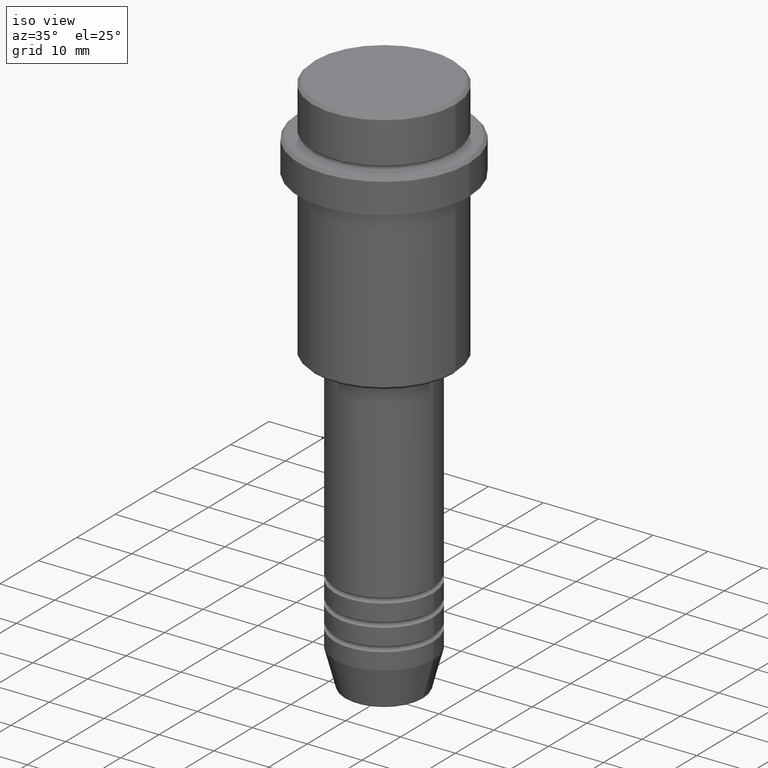
[diagram: clean part render]
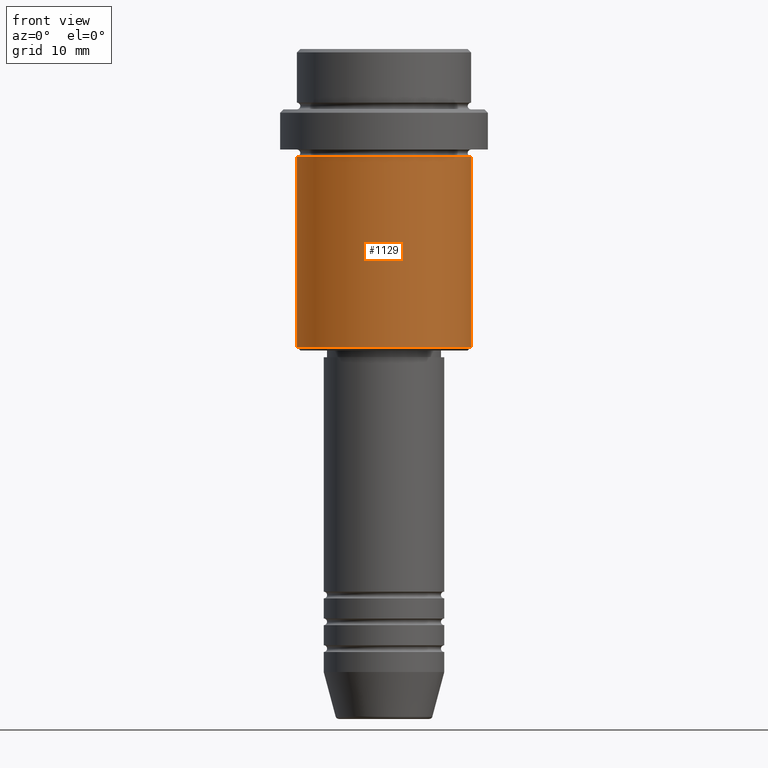
[diagram: tour spotlight — one face highlighted and labeled with its STEP entity id]
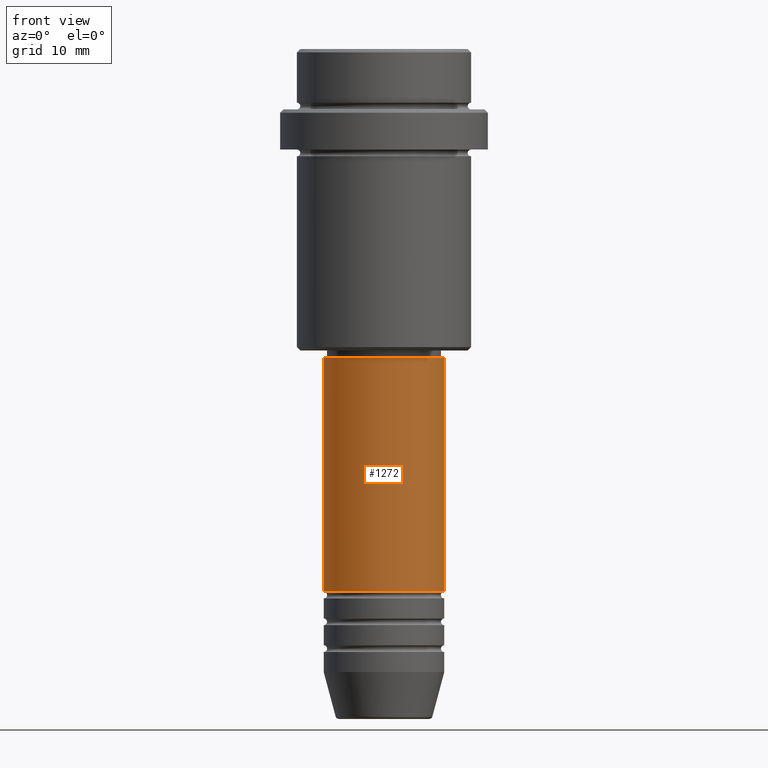
[diagram: tour spotlight — one face highlighted and labeled with its STEP entity id]
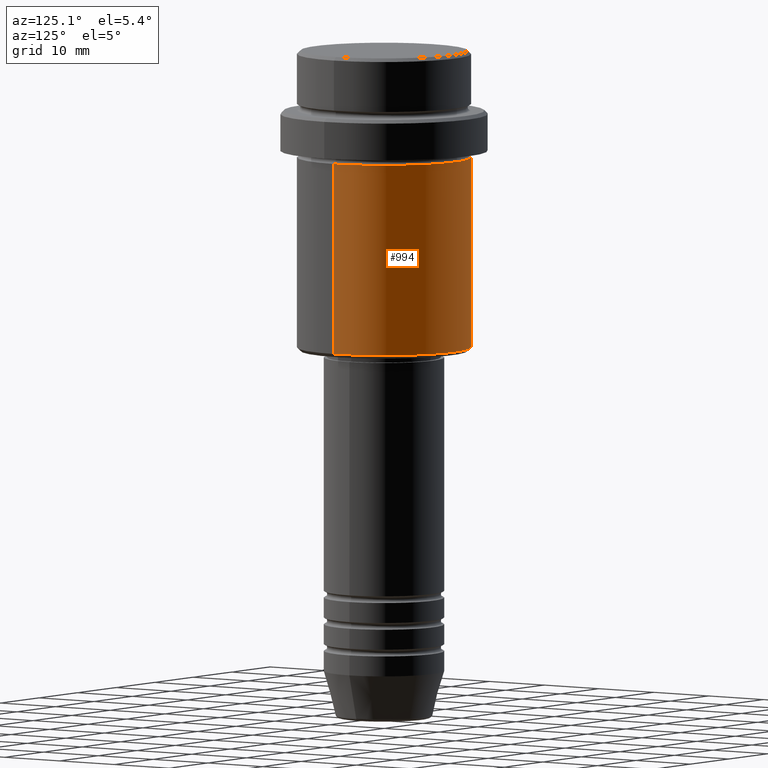
[diagram: tour spotlight — one face highlighted and labeled with its STEP entity id]
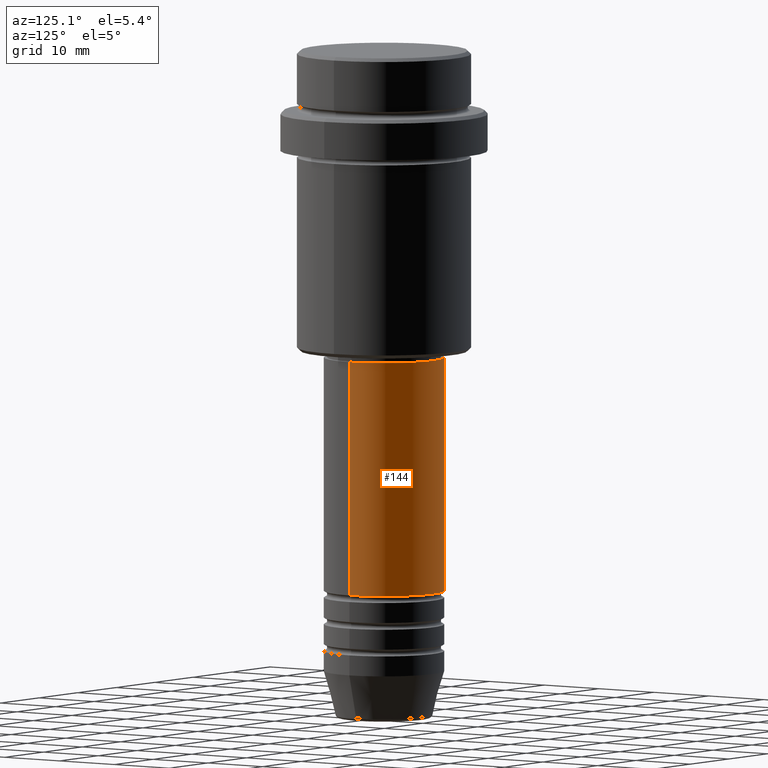
[diagram: tour spotlight — one face highlighted and labeled with its STEP entity id]
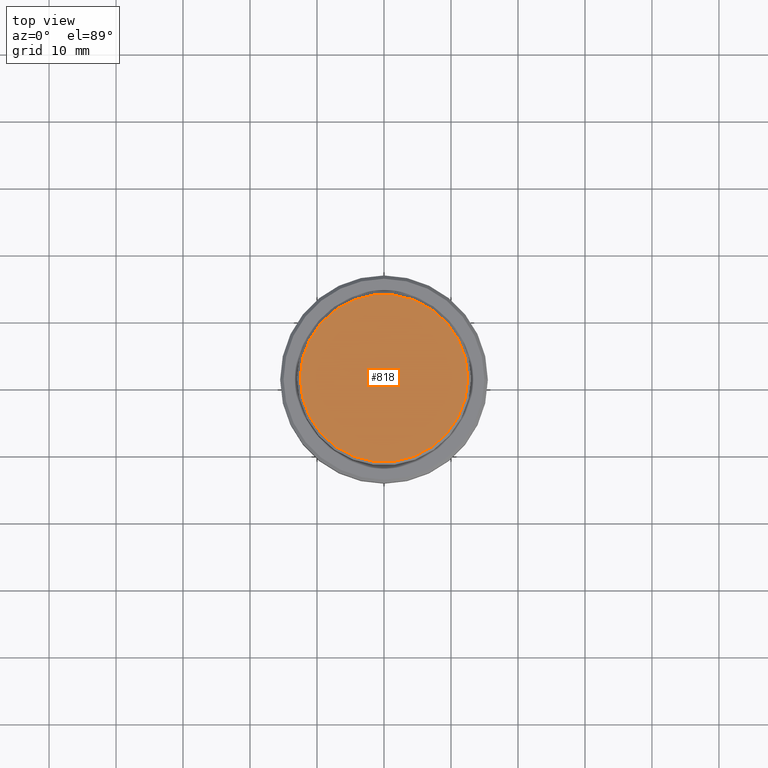
[diagram: tour spotlight — one face highlighted and labeled with its STEP entity id]
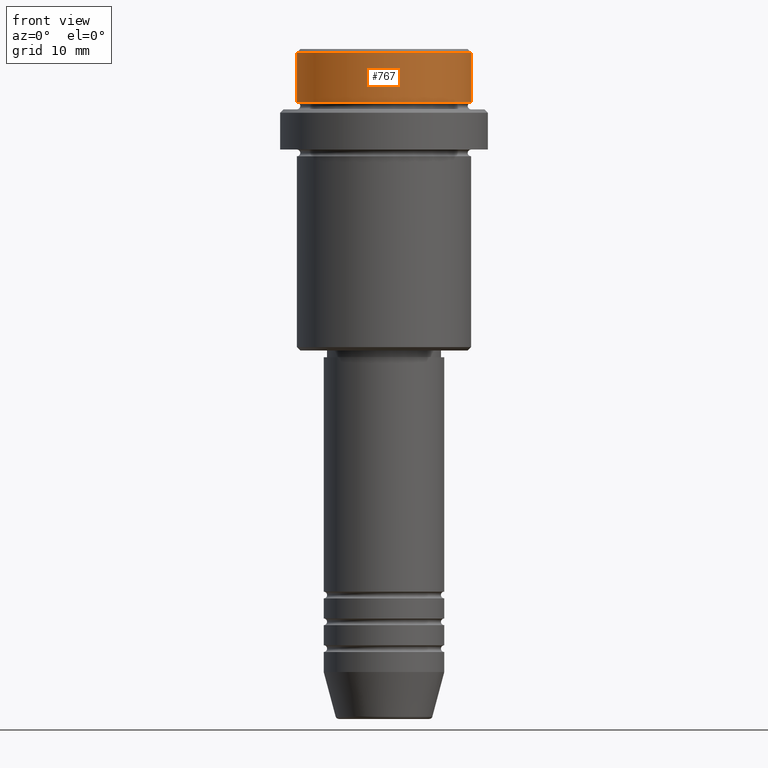
[diagram: tour spotlight — one face highlighted and labeled with its STEP entity id]
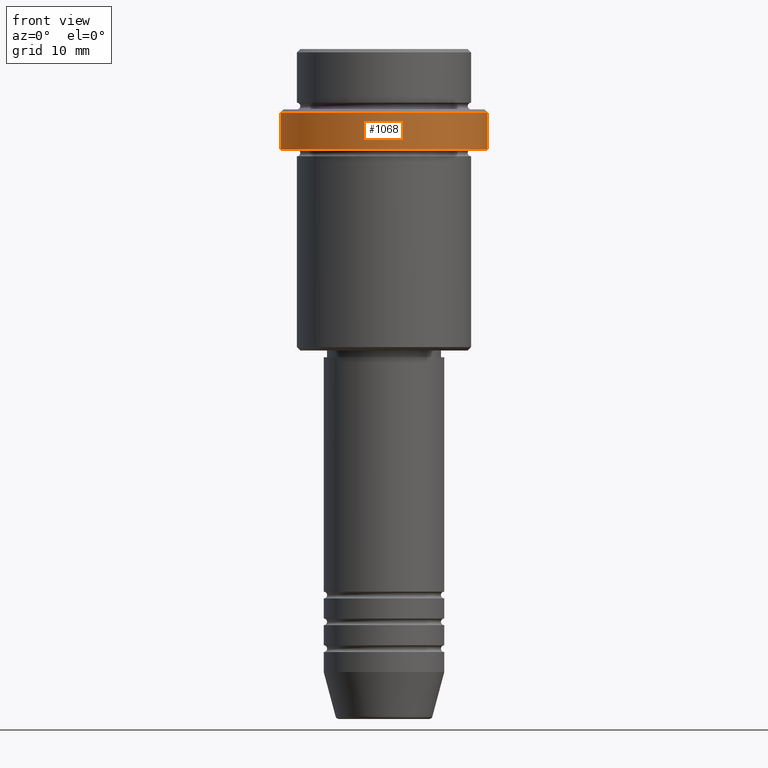
[diagram: tour spotlight — one face highlighted and labeled with its STEP entity id]
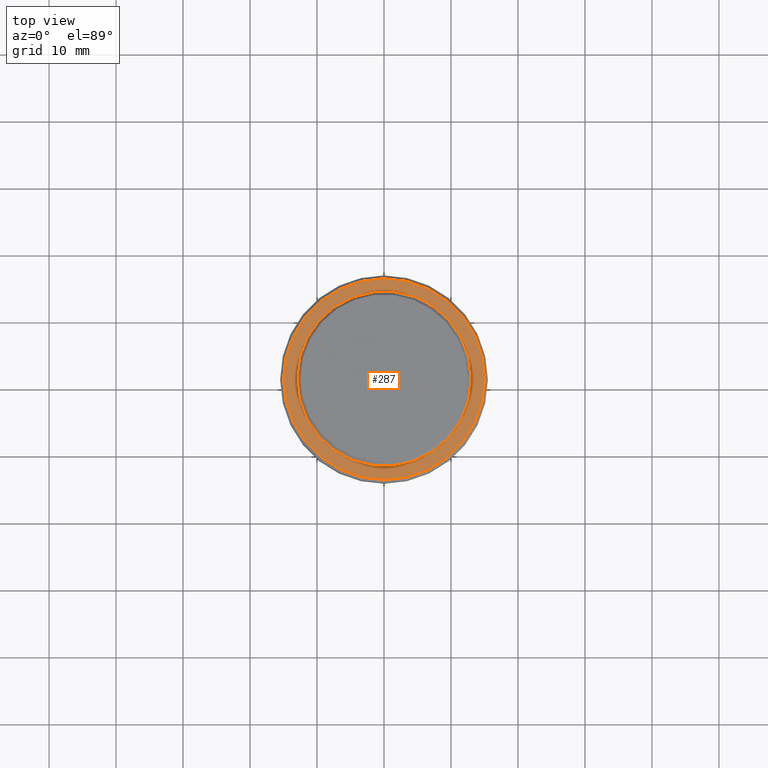
[diagram: tour spotlight — one face highlighted and labeled with its STEP entity id]
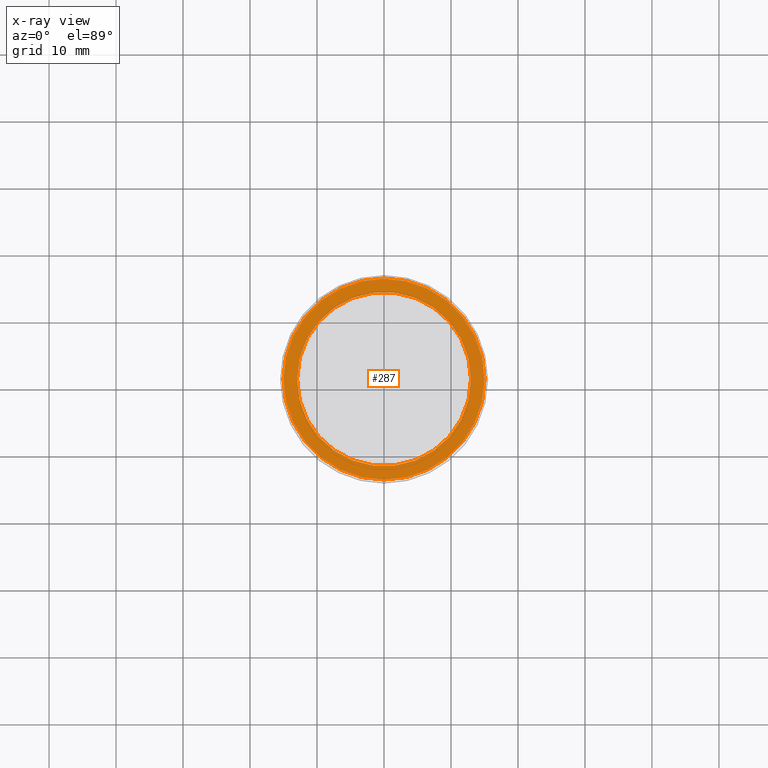
[diagram: x-ray of the same camera — body ghosted, this tour face saturated]
A machine part: a face-by-face anatomy tour. The part has 52 B-rep faces; the first image is the clean iso view, then the 8 largest visible faces are spotlighted one at a time (largest first), each with its STEP entity span.

Face 1 — front view, entity #1129. In plain terms, the highlighted cylindrical surface (partial cylindrical patch) has radius 13 mm, axis along (-0, -0, 1).
Definition (entity closure, byte-faithful):
#30 = ORIENTED_EDGE ( 'NONE', *, *, #1264, .T. ) ;
#62 = LINE ( 'NONE', #1171, #754 ) ;
#67 = VERTEX_POINT ( 'NONE', #971 ) ;
#96 = ORIENTED_EDGE ( 'NONE', *, *, #446, .F. ) ;
#261 = FACE_OUTER_BOUND ( 'NONE', #1356, .T. ) ;
#265 = AXIS2_PLACEMENT_3D ( 'NONE', #1335, #352, #878 ) ;
#298 = LINE ( 'NONE', #1060, #687 ) ;
#303 = EDGE_CURVE ( 'NONE', #67, #805, #636, .T. ) ;
#306 = DIRECTION ( 'NONE',  ( -0.000000000000000000, -0.000000000000000000, 1.000000000000000000 ) ) ;
#321 = DIRECTION ( 'NONE',  ( 1.000000000000000000, 0.000000000000000000, 0.000000000000000000 ) ) ;
#352 = DIRECTION ( 'NONE',  ( -0.000000000000000000, -0.000000000000000000, 1.000000000000000000 ) ) ;
#410 = AXIS2_PLACEMENT_3D ( 'NONE', #1226, #1256, #1138 ) ;
#446 = EDGE_CURVE ( 'NONE', #1026, #67, #298, .T. ) ;
#462 = ORIENTED_EDGE ( 'NONE', *, *, #562, .T. ) ;
#474 = CARTESIAN_POINT ( 'NONE',  ( 13.00000000000000000, 0.000000000000000000, -44.50000000000000000 ) ) ;
#562 = EDGE_CURVE ( 'NONE', #1026, #694, #907, .T. ) ;
#636 = CIRCLE ( 'NONE', #816, 13.00000000000000000 ) ;
#687 = VECTOR ( 'NONE', #1393, 1000.000000000000000 ) ;
#694 = VERTEX_POINT ( 'NONE', #474 ) ;
#707 = CYLINDRICAL_SURFACE ( 'NONE', #410, 13.00000000000000000 ) ;
#754 = VECTOR ( 'NONE', #831, 1000.000000000000000 ) ;
#785 = CARTESIAN_POINT ( 'NONE',  ( -13.00000000000000000, 1.592040838891559095E-15, -44.50000000000000000 ) ) ;
#805 = VERTEX_POINT ( 'NONE', #1044 ) ;
#816 = AXIS2_PLACEMENT_3D ( 'NONE', #1298, #306, #321 ) ;
#831 = DIRECTION ( 'NONE',  ( -0.000000000000000000, -0.000000000000000000, 1.000000000000000000 ) ) ;
#878 = DIRECTION ( 'NONE',  ( -1.000000000000000000, 0.000000000000000000, 0.000000000000000000 ) ) ;
#907 = CIRCLE ( 'NONE', #265, 13.00000000000000000 ) ;
#971 = CARTESIAN_POINT ( 'NONE',  ( -13.00000000000000000, 1.592040838891559095E-15, -16.00000000000000000 ) ) ;
#1026 = VERTEX_POINT ( 'NONE', #785 ) ;
#1044 = CARTESIAN_POINT ( 'NONE',  ( 13.00000000000000000, 0.000000000000000000, -16.00000000000000000 ) ) ;
#1060 = CARTESIAN_POINT ( 'NONE',  ( -13.00000000000000000, 1.592040838891559095E-15, 0.000000000000000000 ) ) ;
#1129 = ADVANCED_FACE ( 'NONE', ( #261 ), #707, .T. ) ;
#1138 = DIRECTION ( 'NONE',  ( 1.000000000000000000, 0.000000000000000000, 0.000000000000000000 ) ) ;
#1145 = ORIENTED_EDGE ( 'NONE', *, *, #303, .F. ) ;
#1171 = CARTESIAN_POINT ( 'NONE',  ( 13.00000000000000000, 0.000000000000000000, 0.000000000000000000 ) ) ;
#1226 = CARTESIAN_POINT ( 'NONE',  ( 0.000000000000000000, 0.000000000000000000, 0.000000000000000000 ) ) ;
#1256 = DIRECTION ( 'NONE',  ( -0.000000000000000000, -0.000000000000000000, 1.000000000000000000 ) ) ;
#1264 = EDGE_CURVE ( 'NONE', #694, #805, #62, .T. ) ;
#1298 = CARTESIAN_POINT ( 'NONE',  ( 0.000000000000000000, 0.000000000000000000, -16.00000000000000000 ) ) ;
#1335 = CARTESIAN_POINT ( 'NONE',  ( 0.000000000000000000, 0.000000000000000000, -44.50000000000000000 ) ) ;
#1356 = EDGE_LOOP ( 'NONE', ( #96, #462, #30, #1145 ) ) ;
#1393 = DIRECTION ( 'NONE',  ( -0.000000000000000000, -0.000000000000000000, 1.000000000000000000 ) ) ;

Face 2 — front view, entity #1272. In plain terms, the highlighted cylindrical surface (partial cylindrical patch) has radius 9 mm, axis along (-0, -0, 1).
Definition (entity closure, byte-faithful):
#72 = VERTEX_POINT ( 'NONE', #1180 ) ;
#116 = DIRECTION ( 'NONE',  ( 1.000000000000000000, 0.000000000000000000, 0.000000000000000000 ) ) ;
#143 = LINE ( 'NONE', #1262, #527 ) ;
#163 = EDGE_CURVE ( 'NONE', #538, #358, #589, .T. ) ;
#176 = AXIS2_PLACEMENT_3D ( 'NONE', #1285, #935, #183 ) ;
#183 = DIRECTION ( 'NONE',  ( 1.000000000000000000, 0.000000000000000000, 0.000000000000000000 ) ) ;
#219 = AXIS2_PLACEMENT_3D ( 'NONE', #1189, #1174, #1270 ) ;
#221 = VECTOR ( 'NONE', #975, 1000.000000000000000 ) ;
#235 = CARTESIAN_POINT ( 'NONE',  ( 9.000000000000001776, 0.000000000000000000, -45.99999999999997868 ) ) ;
#358 = VERTEX_POINT ( 'NONE', #1399 ) ;
#375 = DIRECTION ( 'NONE',  ( -0.000000000000000000, -0.000000000000000000, 1.000000000000000000 ) ) ;
#405 = EDGE_LOOP ( 'NONE', ( #1295, #1151, #1234, #1047 ) ) ;
#424 = EDGE_CURVE ( 'NONE', #72, #1033, #1299, .T. ) ;
#444 = CARTESIAN_POINT ( 'NONE',  ( -9.000000000000000000, 1.102182119232617714E-15, -80.99999999999987210 ) ) ;
#527 = VECTOR ( 'NONE', #375, 1000.000000000000000 ) ;
#538 = VERTEX_POINT ( 'NONE', #444 ) ;
#542 = CARTESIAN_POINT ( 'NONE',  ( -9.000000000000001776, 1.102182119232617911E-15, 0.000000000000000000 ) ) ;
#589 = CIRCLE ( 'NONE', #863, 9.000000000000000000 ) ;
#610 = CYLINDRICAL_SURFACE ( 'NONE', #176, 9.000000000000001776 ) ;
#863 = AXIS2_PLACEMENT_3D ( 'NONE', #1400, #1102, #116 ) ;
#893 = LINE ( 'NONE', #542, #221 ) ;
#935 = DIRECTION ( 'NONE',  ( -0.000000000000000000, -0.000000000000000000, 1.000000000000000000 ) ) ;
#975 = DIRECTION ( 'NONE',  ( -0.000000000000000000, -0.000000000000000000, 1.000000000000000000 ) ) ;
#1011 = EDGE_CURVE ( 'NONE', #538, #72, #893, .T. ) ;
#1033 = VERTEX_POINT ( 'NONE', #235 ) ;
#1047 = ORIENTED_EDGE ( 'NONE', *, *, #424, .F. ) ;
#1057 = FACE_OUTER_BOUND ( 'NONE', #405, .T. ) ;
#1102 = DIRECTION ( 'NONE',  ( -0.000000000000000000, -0.000000000000000000, 1.000000000000000000 ) ) ;
#1151 = ORIENTED_EDGE ( 'NONE', *, *, #163, .T. ) ;
#1174 = DIRECTION ( 'NONE',  ( -0.000000000000000000, -0.000000000000000000, 1.000000000000000000 ) ) ;
#1180 = CARTESIAN_POINT ( 'NONE',  ( -9.000000000000001776, 1.102182119232617911E-15, -45.99999999999997868 ) ) ;
#1189 = CARTESIAN_POINT ( 'NONE',  ( 0.000000000000000000, 0.000000000000000000, -45.99999999999997868 ) ) ;
#1234 = ORIENTED_EDGE ( 'NONE', *, *, #1383, .T. ) ;
#1262 = CARTESIAN_POINT ( 'NONE',  ( 9.000000000000001776, 0.000000000000000000, 0.000000000000000000 ) ) ;
#1270 = DIRECTION ( 'NONE',  ( 1.000000000000000000, 0.000000000000000000, 0.000000000000000000 ) ) ;
#1272 = ADVANCED_FACE ( 'NONE', ( #1057 ), #610, .T. ) ;
#1285 = CARTESIAN_POINT ( 'NONE',  ( 0.000000000000000000, 0.000000000000000000, 0.000000000000000000 ) ) ;
#1295 = ORIENTED_EDGE ( 'NONE', *, *, #1011, .F. ) ;
#1299 = CIRCLE ( 'NONE', #219, 9.000000000000001776 ) ;
#1383 = EDGE_CURVE ( 'NONE', #358, #1033, #143, .T. ) ;
#1399 = CARTESIAN_POINT ( 'NONE',  ( 9.000000000000000000, 0.000000000000000000, -80.99999999999987210 ) ) ;
#1400 = CARTESIAN_POINT ( 'NONE',  ( 0.000000000000000000, 0.000000000000000000, -80.99999999999987210 ) ) ;

Face 3 — auxiliary view, entity #994. In plain terms, the highlighted cylindrical surface (partial cylindrical patch) has radius 13 mm, axis along (-0, -0, 1).
Definition (entity closure, byte-faithful):
#62 = LINE ( 'NONE', #1171, #754 ) ;
#66 = EDGE_LOOP ( 'NONE', ( #252, #1150, #733, #1407 ) ) ;
#67 = VERTEX_POINT ( 'NONE', #971 ) ;
#98 = DIRECTION ( 'NONE',  ( 1.000000000000000000, 0.000000000000000000, 0.000000000000000000 ) ) ;
#174 = AXIS2_PLACEMENT_3D ( 'NONE', #1195, #877, #1217 ) ;
#213 = CYLINDRICAL_SURFACE ( 'NONE', #550, 13.00000000000000000 ) ;
#252 = ORIENTED_EDGE ( 'NONE', *, *, #735, .T. ) ;
#290 = AXIS2_PLACEMENT_3D ( 'NONE', #696, #913, #1164 ) ;
#298 = LINE ( 'NONE', #1060, #687 ) ;
#345 = CIRCLE ( 'NONE', #290, 13.00000000000000000 ) ;
#446 = EDGE_CURVE ( 'NONE', #1026, #67, #298, .T. ) ;
#456 = CARTESIAN_POINT ( 'NONE',  ( 0.000000000000000000, 0.000000000000000000, 0.000000000000000000 ) ) ;
#474 = CARTESIAN_POINT ( 'NONE',  ( 13.00000000000000000, 0.000000000000000000, -44.50000000000000000 ) ) ;
#550 = AXIS2_PLACEMENT_3D ( 'NONE', #456, #882, #98 ) ;
#687 = VECTOR ( 'NONE', #1393, 1000.000000000000000 ) ;
#694 = VERTEX_POINT ( 'NONE', #474 ) ;
#696 = CARTESIAN_POINT ( 'NONE',  ( 0.000000000000000000, 0.000000000000000000, -44.50000000000000000 ) ) ;
#712 = CIRCLE ( 'NONE', #174, 13.00000000000000000 ) ;
#733 = ORIENTED_EDGE ( 'NONE', *, *, #974, .F. ) ;
#735 = EDGE_CURVE ( 'NONE', #694, #1026, #345, .T. ) ;
#754 = VECTOR ( 'NONE', #831, 1000.000000000000000 ) ;
#785 = CARTESIAN_POINT ( 'NONE',  ( -13.00000000000000000, 1.592040838891559095E-15, -44.50000000000000000 ) ) ;
#805 = VERTEX_POINT ( 'NONE', #1044 ) ;
#831 = DIRECTION ( 'NONE',  ( -0.000000000000000000, -0.000000000000000000, 1.000000000000000000 ) ) ;
#877 = DIRECTION ( 'NONE',  ( -0.000000000000000000, -0.000000000000000000, 1.000000000000000000 ) ) ;
#882 = DIRECTION ( 'NONE',  ( -0.000000000000000000, -0.000000000000000000, 1.000000000000000000 ) ) ;
#913 = DIRECTION ( 'NONE',  ( -0.000000000000000000, -0.000000000000000000, 1.000000000000000000 ) ) ;
#971 = CARTESIAN_POINT ( 'NONE',  ( -13.00000000000000000, 1.592040838891559095E-15, -16.00000000000000000 ) ) ;
#974 = EDGE_CURVE ( 'NONE', #805, #67, #712, .T. ) ;
#994 = ADVANCED_FACE ( 'NONE', ( #1081 ), #213, .T. ) ;
#1026 = VERTEX_POINT ( 'NONE', #785 ) ;
#1044 = CARTESIAN_POINT ( 'NONE',  ( 13.00000000000000000, 0.000000000000000000, -16.00000000000000000 ) ) ;
#1060 = CARTESIAN_POINT ( 'NONE',  ( -13.00000000000000000, 1.592040838891559095E-15, 0.000000000000000000 ) ) ;
#1081 = FACE_OUTER_BOUND ( 'NONE', #66, .T. ) ;
#1150 = ORIENTED_EDGE ( 'NONE', *, *, #446, .T. ) ;
#1164 = DIRECTION ( 'NONE',  ( -1.000000000000000000, 0.000000000000000000, 0.000000000000000000 ) ) ;
#1171 = CARTESIAN_POINT ( 'NONE',  ( 13.00000000000000000, 0.000000000000000000, 0.000000000000000000 ) ) ;
#1195 = CARTESIAN_POINT ( 'NONE',  ( 0.000000000000000000, 0.000000000000000000, -16.00000000000000000 ) ) ;
#1217 = DIRECTION ( 'NONE',  ( 1.000000000000000000, 0.000000000000000000, 0.000000000000000000 ) ) ;
#1264 = EDGE_CURVE ( 'NONE', #694, #805, #62, .T. ) ;
#1393 = DIRECTION ( 'NONE',  ( -0.000000000000000000, -0.000000000000000000, 1.000000000000000000 ) ) ;
#1407 = ORIENTED_EDGE ( 'NONE', *, *, #1264, .F. ) ;

Face 4 — auxiliary view, entity #144. In plain terms, the highlighted cylindrical surface (partial cylindrical patch) has radius 9 mm, axis along (-0, -0, 1).
Definition (entity closure, byte-faithful):
#7 = DIRECTION ( 'NONE',  ( 1.000000000000000000, 0.000000000000000000, 0.000000000000000000 ) ) ;
#72 = VERTEX_POINT ( 'NONE', #1180 ) ;
#143 = LINE ( 'NONE', #1262, #527 ) ;
#144 = ADVANCED_FACE ( 'NONE', ( #328 ), #1394, .T. ) ;
#170 = AXIS2_PLACEMENT_3D ( 'NONE', #898, #683, #765 ) ;
#216 = ORIENTED_EDGE ( 'NONE', *, *, #1011, .T. ) ;
#221 = VECTOR ( 'NONE', #975, 1000.000000000000000 ) ;
#235 = CARTESIAN_POINT ( 'NONE',  ( 9.000000000000001776, 0.000000000000000000, -45.99999999999997868 ) ) ;
#286 = AXIS2_PLACEMENT_3D ( 'NONE', #766, #556, #7 ) ;
#316 = EDGE_LOOP ( 'NONE', ( #1313, #216, #532, #940 ) ) ;
#328 = FACE_OUTER_BOUND ( 'NONE', #316, .T. ) ;
#358 = VERTEX_POINT ( 'NONE', #1399 ) ;
#375 = DIRECTION ( 'NONE',  ( -0.000000000000000000, -0.000000000000000000, 1.000000000000000000 ) ) ;
#380 = DIRECTION ( 'NONE',  ( -0.000000000000000000, -0.000000000000000000, 1.000000000000000000 ) ) ;
#444 = CARTESIAN_POINT ( 'NONE',  ( -9.000000000000000000, 1.102182119232617714E-15, -80.99999999999987210 ) ) ;
#527 = VECTOR ( 'NONE', #375, 1000.000000000000000 ) ;
#532 = ORIENTED_EDGE ( 'NONE', *, *, #1158, .F. ) ;
#538 = VERTEX_POINT ( 'NONE', #444 ) ;
#542 = CARTESIAN_POINT ( 'NONE',  ( -9.000000000000001776, 1.102182119232617911E-15, 0.000000000000000000 ) ) ;
#551 = EDGE_CURVE ( 'NONE', #358, #538, #885, .T. ) ;
#556 = DIRECTION ( 'NONE',  ( -0.000000000000000000, -0.000000000000000000, 1.000000000000000000 ) ) ;
#683 = DIRECTION ( 'NONE',  ( -0.000000000000000000, -0.000000000000000000, 1.000000000000000000 ) ) ;
#765 = DIRECTION ( 'NONE',  ( 1.000000000000000000, 0.000000000000000000, 0.000000000000000000 ) ) ;
#766 = CARTESIAN_POINT ( 'NONE',  ( 0.000000000000000000, 0.000000000000000000, 0.000000000000000000 ) ) ;
#820 = DIRECTION ( 'NONE',  ( 1.000000000000000000, 0.000000000000000000, 0.000000000000000000 ) ) ;
#843 = AXIS2_PLACEMENT_3D ( 'NONE', #921, #380, #820 ) ;
#885 = CIRCLE ( 'NONE', #170, 9.000000000000000000 ) ;
#893 = LINE ( 'NONE', #542, #221 ) ;
#898 = CARTESIAN_POINT ( 'NONE',  ( 0.000000000000000000, 0.000000000000000000, -80.99999999999987210 ) ) ;
#921 = CARTESIAN_POINT ( 'NONE',  ( 0.000000000000000000, 0.000000000000000000, -45.99999999999997868 ) ) ;
#940 = ORIENTED_EDGE ( 'NONE', *, *, #1383, .F. ) ;
#975 = DIRECTION ( 'NONE',  ( -0.000000000000000000, -0.000000000000000000, 1.000000000000000000 ) ) ;
#1011 = EDGE_CURVE ( 'NONE', #538, #72, #893, .T. ) ;
#1033 = VERTEX_POINT ( 'NONE', #235 ) ;
#1158 = EDGE_CURVE ( 'NONE', #1033, #72, #1213, .T. ) ;
#1180 = CARTESIAN_POINT ( 'NONE',  ( -9.000000000000001776, 1.102182119232617911E-15, -45.99999999999997868 ) ) ;
#1213 = CIRCLE ( 'NONE', #843, 9.000000000000001776 ) ;
#1262 = CARTESIAN_POINT ( 'NONE',  ( 9.000000000000001776, 0.000000000000000000, 0.000000000000000000 ) ) ;
#1313 = ORIENTED_EDGE ( 'NONE', *, *, #551, .T. ) ;
#1383 = EDGE_CURVE ( 'NONE', #358, #1033, #143, .T. ) ;
#1394 = CYLINDRICAL_SURFACE ( 'NONE', #286, 9.000000000000001776 ) ;
#1399 = CARTESIAN_POINT ( 'NONE',  ( 9.000000000000000000, 0.000000000000000000, -80.99999999999987210 ) ) ;

Face 5 — top view, entity #818. In plain terms, the highlighted planar face has unit normal (0, -0, 1).
Definition (entity closure, byte-faithful):
#28 = CARTESIAN_POINT ( 'NONE',  ( 0.000000000000000000, 0.000000000000000000, 0.000000000000000000 ) ) ;
#86 = DIRECTION ( 'NONE',  ( 0.000000000000000000, -0.000000000000000000, 1.000000000000000000 ) ) ;
#249 = EDGE_LOOP ( 'NONE', ( #1336, #1095 ) ) ;
#343 = AXIS2_PLACEMENT_3D ( 'NONE', #1398, #86, #418 ) ;
#418 = DIRECTION ( 'NONE',  ( 1.000000000000000000, 0.000000000000000000, 0.000000000000000000 ) ) ;
#469 = DIRECTION ( 'NONE',  ( -0.000000000000000000, -0.000000000000000000, 1.000000000000000000 ) ) ;
#508 = VERTEX_POINT ( 'NONE', #1309 ) ;
#623 = PLANE ( 'NONE',  #343 ) ;
#635 = FACE_OUTER_BOUND ( 'NONE', #249, .T. ) ;
#660 = CARTESIAN_POINT ( 'NONE',  ( 0.000000000000000000, 0.000000000000000000, 0.000000000000000000 ) ) ;
#718 = EDGE_CURVE ( 'NONE', #508, #1103, #797, .T. ) ;
#797 = CIRCLE ( 'NONE', #1135, 12.49999999999998579 ) ;
#818 = ADVANCED_FACE ( 'NONE', ( #635 ), #623, .T. ) ;
#902 = DIRECTION ( 'NONE',  ( 1.000000000000000000, 0.000000000000000000, 0.000000000000000000 ) ) ;
#1032 = EDGE_CURVE ( 'NONE', #1103, #508, #1188, .T. ) ;
#1034 = CARTESIAN_POINT ( 'NONE',  ( -12.49999999999998579, 0.000000000000000000, 0.000000000000000000 ) ) ;
#1088 = DIRECTION ( 'NONE',  ( 1.000000000000000000, 0.000000000000000000, 0.000000000000000000 ) ) ;
#1094 = AXIS2_PLACEMENT_3D ( 'NONE', #660, #1221, #1088 ) ;
#1095 = ORIENTED_EDGE ( 'NONE', *, *, #718, .T. ) ;
#1103 = VERTEX_POINT ( 'NONE', #1034 ) ;
#1135 = AXIS2_PLACEMENT_3D ( 'NONE', #28, #469, #902 ) ;
#1188 = CIRCLE ( 'NONE', #1094, 12.49999999999998579 ) ;
#1221 = DIRECTION ( 'NONE',  ( -0.000000000000000000, -0.000000000000000000, 1.000000000000000000 ) ) ;
#1309 = CARTESIAN_POINT ( 'NONE',  ( 12.49999999999998579, 1.561424668912874125E-15, 0.000000000000000000 ) ) ;
#1336 = ORIENTED_EDGE ( 'NONE', *, *, #1032, .T. ) ;
#1398 = CARTESIAN_POINT ( 'NONE',  ( 0.000000000000000000, 0.000000000000000000, 0.000000000000000000 ) ) ;

Face 6 — front view, entity #767. In plain terms, the highlighted cylindrical surface (partial cylindrical patch) has radius 13 mm, axis along (-0, -0, 1).
Definition (entity closure, byte-faithful):
#92 = CARTESIAN_POINT ( 'NONE',  ( 0.000000000000000000, 0.000000000000000000, 0.000000000000000000 ) ) ;
#128 = CARTESIAN_POINT ( 'NONE',  ( 12.99999999999999822, 0.000000000000000000, -0.5000000000000177636 ) ) ;
#173 = ORIENTED_EDGE ( 'NONE', *, *, #1413, .T. ) ;
#182 = EDGE_CURVE ( 'NONE', #440, #300, #750, .T. ) ;
#186 = DIRECTION ( 'NONE',  ( 1.000000000000000000, 0.000000000000000000, 0.000000000000000000 ) ) ;
#217 = AXIS2_PLACEMENT_3D ( 'NONE', #224, #763, #1333 ) ;
#224 = CARTESIAN_POINT ( 'NONE',  ( 0.000000000000000000, 0.000000000000000000, -7.999999999999998224 ) ) ;
#229 = EDGE_CURVE ( 'NONE', #578, #599, #1386, .T. ) ;
#256 = CARTESIAN_POINT ( 'NONE',  ( 12.99999999999999822, 0.000000000000000000, 0.000000000000000000 ) ) ;
#272 = DIRECTION ( 'NONE',  ( -0.000000000000000000, -0.000000000000000000, 1.000000000000000000 ) ) ;
#300 = VERTEX_POINT ( 'NONE', #675 ) ;
#311 = FACE_OUTER_BOUND ( 'NONE', #509, .T. ) ;
#438 = ORIENTED_EDGE ( 'NONE', *, *, #786, .F. ) ;
#440 = VERTEX_POINT ( 'NONE', #1076 ) ;
#455 = VECTOR ( 'NONE', #630, 1000.000000000000000 ) ;
#475 = AXIS2_PLACEMENT_3D ( 'NONE', #92, #943, #186 ) ;
#488 = LINE ( 'NONE', #256, #1235 ) ;
#509 = EDGE_LOOP ( 'NONE', ( #438, #924, #173, #905 ) ) ;
#511 = LINE ( 'NONE', #1382, #455 ) ;
#578 = VERTEX_POINT ( 'NONE', #128 ) ;
#599 = VERTEX_POINT ( 'NONE', #1243 ) ;
#630 = DIRECTION ( 'NONE',  ( -0.000000000000000000, -0.000000000000000000, 1.000000000000000000 ) ) ;
#675 = CARTESIAN_POINT ( 'NONE',  ( 12.99999999999999822, 0.000000000000000000, -7.999999999999998224 ) ) ;
#744 = CYLINDRICAL_SURFACE ( 'NONE', #475, 12.99999999999999822 ) ;
#750 = CIRCLE ( 'NONE', #217, 12.99999999999999822 ) ;
#763 = DIRECTION ( 'NONE',  ( -0.000000000000000000, -0.000000000000000000, 1.000000000000000000 ) ) ;
#767 = ADVANCED_FACE ( 'NONE', ( #311 ), #744, .T. ) ;
#786 = EDGE_CURVE ( 'NONE', #440, #599, #511, .T. ) ;
#876 = DIRECTION ( 'NONE',  ( 1.000000000000000000, 0.000000000000000000, 0.000000000000000000 ) ) ;
#905 = ORIENTED_EDGE ( 'NONE', *, *, #229, .T. ) ;
#924 = ORIENTED_EDGE ( 'NONE', *, *, #182, .T. ) ;
#943 = DIRECTION ( 'NONE',  ( -0.000000000000000000, -0.000000000000000000, 1.000000000000000000 ) ) ;
#1038 = AXIS2_PLACEMENT_3D ( 'NONE', #1104, #1403, #876 ) ;
#1076 = CARTESIAN_POINT ( 'NONE',  ( -12.99999999999999822, 1.592040838891558898E-15, -7.999999999999998224 ) ) ;
#1104 = CARTESIAN_POINT ( 'NONE',  ( 0.000000000000000000, 0.000000000000000000, -0.5000000000000177636 ) ) ;
#1235 = VECTOR ( 'NONE', #272, 1000.000000000000000 ) ;
#1243 = CARTESIAN_POINT ( 'NONE',  ( -12.99999999999999822, 1.592040838891558898E-15, -0.5000000000000177636 ) ) ;
#1333 = DIRECTION ( 'NONE',  ( 1.000000000000000000, 0.000000000000000000, 0.000000000000000000 ) ) ;
#1382 = CARTESIAN_POINT ( 'NONE',  ( -12.99999999999999822, 1.592040838891558898E-15, 0.000000000000000000 ) ) ;
#1386 = CIRCLE ( 'NONE', #1038, 12.99999999999999822 ) ;
#1403 = DIRECTION ( 'NONE',  ( 0.000000000000000000, 0.000000000000000000, -1.000000000000000000 ) ) ;
#1413 = EDGE_CURVE ( 'NONE', #300, #578, #488, .T. ) ;

Face 7 — front view, entity #1068. In plain terms, the highlighted cylindrical surface (partial cylindrical patch) has radius 15.5 mm, axis along (-0, -0, 1).
Definition (entity closure, byte-faithful):
#82 = VERTEX_POINT ( 'NONE', #323 ) ;
#108 = AXIS2_PLACEMENT_3D ( 'NONE', #355, #701, #1352 ) ;
#134 = CARTESIAN_POINT ( 'NONE',  ( 15.50000000000000000, 0.000000000000000000, 0.000000000000000000 ) ) ;
#136 = EDGE_CURVE ( 'NONE', #896, #1003, #452, .T. ) ;
#152 = ORIENTED_EDGE ( 'NONE', *, *, #1100, .T. ) ;
#177 = CARTESIAN_POINT ( 'NONE',  ( -15.50000000000000000, 1.898202538678397557E-15, -15.00000000000000000 ) ) ;
#251 = DIRECTION ( 'NONE',  ( -0.000000000000000000, -0.000000000000000000, 1.000000000000000000 ) ) ;
#255 = FACE_OUTER_BOUND ( 'NONE', #716, .T. ) ;
#323 = CARTESIAN_POINT ( 'NONE',  ( 15.50000000000000000, 0.000000000000000000, -15.00000000000000000 ) ) ;
#344 = CARTESIAN_POINT ( 'NONE',  ( 15.50000000000000000, 0.000000000000000000, -9.499999999999984013 ) ) ;
#346 = AXIS2_PLACEMENT_3D ( 'NONE', #910, #695, #1130 ) ;
#355 = CARTESIAN_POINT ( 'NONE',  ( 0.000000000000000000, 0.000000000000000000, 0.000000000000000000 ) ) ;
#452 = CIRCLE ( 'NONE', #1157, 15.50000000000000000 ) ;
#522 = VECTOR ( 'NONE', #251, 1000.000000000000000 ) ;
#544 = DIRECTION ( 'NONE',  ( 1.000000000000000000, 0.000000000000000000, 0.000000000000000000 ) ) ;
#552 = CARTESIAN_POINT ( 'NONE',  ( -15.50000000000000000, 1.898202538678397557E-15, -9.499999999999984013 ) ) ;
#576 = CIRCLE ( 'NONE', #346, 15.50000000000000000 ) ;
#582 = DIRECTION ( 'NONE',  ( -0.000000000000000000, -0.000000000000000000, 1.000000000000000000 ) ) ;
#602 = ORIENTED_EDGE ( 'NONE', *, *, #136, .T. ) ;
#604 = CYLINDRICAL_SURFACE ( 'NONE', #108, 15.50000000000000000 ) ;
#632 = CARTESIAN_POINT ( 'NONE',  ( 0.000000000000000000, 0.000000000000000000, -9.499999999999984013 ) ) ;
#695 = DIRECTION ( 'NONE',  ( -0.000000000000000000, -0.000000000000000000, 1.000000000000000000 ) ) ;
#701 = DIRECTION ( 'NONE',  ( -0.000000000000000000, -0.000000000000000000, 1.000000000000000000 ) ) ;
#710 = EDGE_CURVE ( 'NONE', #82, #896, #1121, .T. ) ;
#716 = EDGE_LOOP ( 'NONE', ( #1379, #152, #1122, #602 ) ) ;
#724 = EDGE_CURVE ( 'NONE', #1366, #1003, #1343, .T. ) ;
#801 = CARTESIAN_POINT ( 'NONE',  ( -15.50000000000000000, 1.898202538678397557E-15, 0.000000000000000000 ) ) ;
#896 = VERTEX_POINT ( 'NONE', #344 ) ;
#910 = CARTESIAN_POINT ( 'NONE',  ( 0.000000000000000000, 0.000000000000000000, -15.00000000000000000 ) ) ;
#1003 = VERTEX_POINT ( 'NONE', #552 ) ;
#1068 = ADVANCED_FACE ( 'NONE', ( #255 ), #604, .T. ) ;
#1083 = DIRECTION ( 'NONE',  ( 0.000000000000000000, 0.000000000000000000, -1.000000000000000000 ) ) ;
#1100 = EDGE_CURVE ( 'NONE', #1366, #82, #576, .T. ) ;
#1121 = LINE ( 'NONE', #134, #1412 ) ;
#1122 = ORIENTED_EDGE ( 'NONE', *, *, #710, .T. ) ;
#1130 = DIRECTION ( 'NONE',  ( 1.000000000000000000, 0.000000000000000000, 0.000000000000000000 ) ) ;
#1157 = AXIS2_PLACEMENT_3D ( 'NONE', #632, #1083, #544 ) ;
#1343 = LINE ( 'NONE', #801, #522 ) ;
#1352 = DIRECTION ( 'NONE',  ( 1.000000000000000000, 0.000000000000000000, 0.000000000000000000 ) ) ;
#1366 = VERTEX_POINT ( 'NONE', #177 ) ;
#1379 = ORIENTED_EDGE ( 'NONE', *, *, #724, .F. ) ;
#1412 = VECTOR ( 'NONE', #582, 1000.000000000000000 ) ;

Face 8 — top view, entity #287. An x-ray twin of the same camera follows (body ghosted, this face saturated) — the face is partly hidden behind the body. In plain terms, the highlighted planar face has unit normal (0, -0, 1).
Definition (entity closure, byte-faithful):
#23 = ORIENTED_EDGE ( 'NONE', *, *, #50, .T. ) ;
#50 = EDGE_CURVE ( 'NONE', #1108, #1224, #884, .T. ) ;
#53 = CARTESIAN_POINT ( 'NONE',  ( 12.99999999999999467, 0.000000000000000000, -9.000000000000000000 ) ) ;
#88 = AXIS2_PLACEMENT_3D ( 'NONE', #854, #1290, #309 ) ;
#94 = CARTESIAN_POINT ( 'NONE',  ( 0.000000000000000000, 0.000000000000000000, -9.000000000000000000 ) ) ;
#105 = EDGE_CURVE ( 'NONE', #1372, #353, #472, .T. ) ;
#112 = ORIENTED_EDGE ( 'NONE', *, *, #1318, .T. ) ;
#193 = CARTESIAN_POINT ( 'NONE',  ( 0.000000000000000000, 0.000000000000000000, -9.000000000000000000 ) ) ;
#203 = DIRECTION ( 'NONE',  ( 1.000000000000000000, 0.000000000000000000, 0.000000000000000000 ) ) ;
#287 = ADVANCED_FACE ( 'NONE', ( #860, #448 ), #756, .T. ) ;
#309 = DIRECTION ( 'NONE',  ( 1.000000000000000000, 0.000000000000000000, 0.000000000000000000 ) ) ;
#332 = DIRECTION ( 'NONE',  ( 0.000000000000000000, -0.000000000000000000, 1.000000000000000000 ) ) ;
#353 = VERTEX_POINT ( 'NONE', #1082 ) ;
#356 = EDGE_CURVE ( 'NONE', #353, #1372, #1040, .T. ) ;
#448 = FACE_BOUND ( 'NONE', #460, .T. ) ;
#460 = EDGE_LOOP ( 'NONE', ( #23, #112 ) ) ;
#472 = CIRCLE ( 'NONE', #794, 15.00000000000000000 ) ;
#536 = DIRECTION ( 'NONE',  ( 1.000000000000000000, 0.000000000000000000, 0.000000000000000000 ) ) ;
#614 = AXIS2_PLACEMENT_3D ( 'NONE', #193, #1069, #536 ) ;
#640 = DIRECTION ( 'NONE',  ( 0.000000000000000000, 0.000000000000000000, -1.000000000000000000 ) ) ;
#727 = AXIS2_PLACEMENT_3D ( 'NONE', #891, #332, #1321 ) ;
#756 = PLANE ( 'NONE',  #727 ) ;
#760 = CARTESIAN_POINT ( 'NONE',  ( 0.000000000000000000, 0.000000000000000000, -9.000000000000000000 ) ) ;
#794 = AXIS2_PLACEMENT_3D ( 'NONE', #760, #1196, #1294 ) ;
#854 = CARTESIAN_POINT ( 'NONE',  ( 0.000000000000000000, 0.000000000000000000, -9.000000000000000000 ) ) ;
#860 = FACE_OUTER_BOUND ( 'NONE', #1246, .T. ) ;
#884 = CIRCLE ( 'NONE', #925, 12.99999999999999467 ) ;
#891 = CARTESIAN_POINT ( 'NONE',  ( 0.000000000000000000, 12.49999999999999289, -9.000000000000000000 ) ) ;
#925 = AXIS2_PLACEMENT_3D ( 'NONE', #94, #640, #203 ) ;
#961 = CARTESIAN_POINT ( 'NONE',  ( -12.99999999999999467, 1.592040838891558504E-15, -9.000000000000000000 ) ) ;
#1040 = CIRCLE ( 'NONE', #614, 15.00000000000000000 ) ;
#1042 = CARTESIAN_POINT ( 'NONE',  ( 15.00000000000000000, 1.867586368699713376E-15, -9.000000000000000000 ) ) ;
#1046 = CIRCLE ( 'NONE', #88, 12.99999999999999467 ) ;
#1069 = DIRECTION ( 'NONE',  ( -0.000000000000000000, -0.000000000000000000, 1.000000000000000000 ) ) ;
#1072 = ORIENTED_EDGE ( 'NONE', *, *, #105, .T. ) ;
#1082 = CARTESIAN_POINT ( 'NONE',  ( -15.00000000000000000, 0.000000000000000000, -9.000000000000000000 ) ) ;
#1108 = VERTEX_POINT ( 'NONE', #53 ) ;
#1176 = ORIENTED_EDGE ( 'NONE', *, *, #356, .T. ) ;
#1196 = DIRECTION ( 'NONE',  ( -0.000000000000000000, -0.000000000000000000, 1.000000000000000000 ) ) ;
#1224 = VERTEX_POINT ( 'NONE', #961 ) ;
#1246 = EDGE_LOOP ( 'NONE', ( #1176, #1072 ) ) ;
#1290 = DIRECTION ( 'NONE',  ( 0.000000000000000000, 0.000000000000000000, -1.000000000000000000 ) ) ;
#1294 = DIRECTION ( 'NONE',  ( 1.000000000000000000, 0.000000000000000000, 0.000000000000000000 ) ) ;
#1318 = EDGE_CURVE ( 'NONE', #1224, #1108, #1046, .T. ) ;
#1321 = DIRECTION ( 'NONE',  ( 1.000000000000000000, 0.000000000000000000, 0.000000000000000000 ) ) ;
#1372 = VERTEX_POINT ( 'NONE', #1042 ) ;